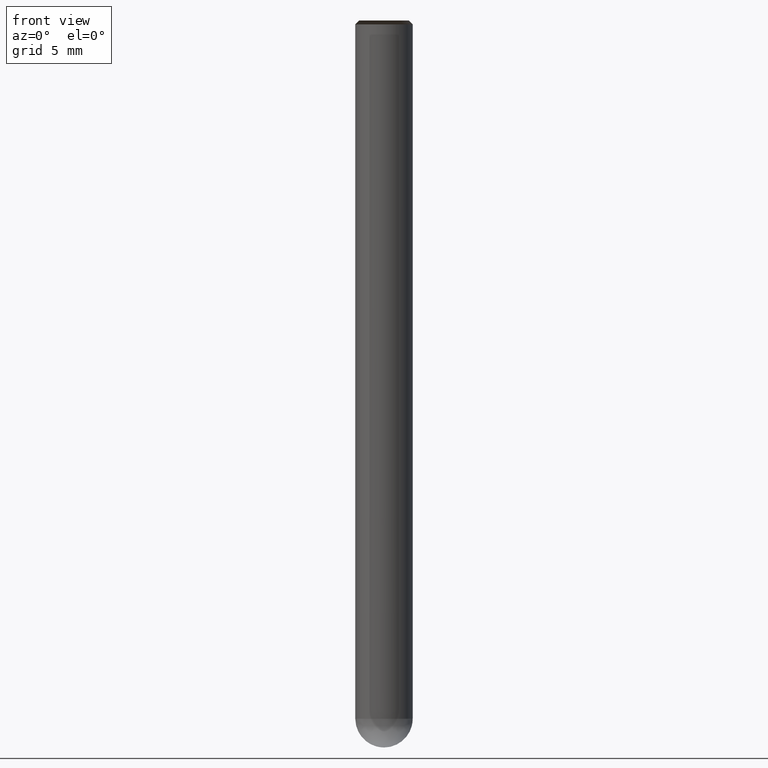
[diagram: clean part render]
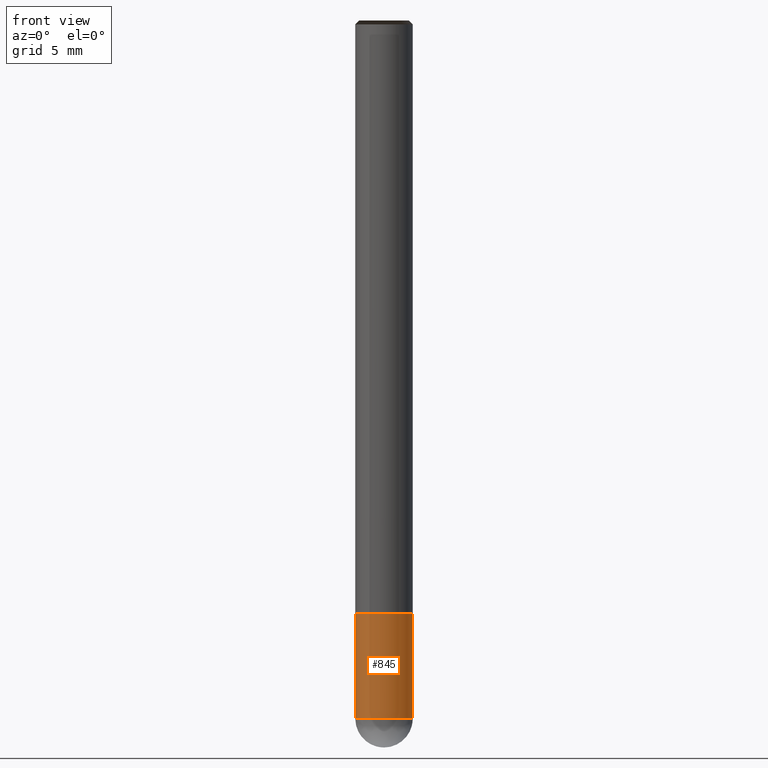
[diagram: same view with one face highlighted and labeled with its STEP entity id]
A machine part, front view. The second image highlights one B-rep face of the part: STEP entity #845.
In plain terms, the highlighted face is a freeform B-spline surface patch.
Its self-contained STEP definition (entity closure, byte-faithful):
#706=CARTESIAN_POINT('',(1.5,0.0,-10.5));
#710=CARTESIAN_POINT('',(-1.5,0.0,-10.5));
#711=CARTESIAN_POINT('',(1.5,0.0,-5.0));
#715=CARTESIAN_POINT('',(-1.5,0.0,-5.0));
#720=CARTESIAN_POINT('',(-1.5,-1.5,-10.5));
#721=CARTESIAN_POINT('',(0.0,-1.5,-10.5));
#722=CARTESIAN_POINT('',(1.5,-1.5,-10.5));
#723=CARTESIAN_POINT('',(-1.5,-1.5,-5.0));
#724=CARTESIAN_POINT('',(0.0,-1.5,-5.0));
#725=CARTESIAN_POINT('',(1.5,-1.5,-5.0));
#826=(
BOUNDED_SURFACE()
B_SPLINE_SURFACE(1,2,(
(#710,#720,#721,#722,#706),
(#715,#723,#724,#725,#711)
), .UNSPECIFIED.,.F.,.F.,.F.)
B_SPLINE_SURFACE_WITH_KNOTS((2,2),(3,2,3),(
0.0,1.0),(
0.0,0.5,1.0), .UNSPECIFIED.)
GEOMETRIC_REPRESENTATION_ITEM()
RATIONAL_B_SPLINE_SURFACE(((1.0,0.707106781187,1.0,0.707106781187,1.0),
(1.0,0.707106781187,1.0,0.707106781187,1.0)
))
REPRESENTATION_ITEM('')
SURFACE()
);
#827=(
BOUNDED_CURVE()
B_SPLINE_CURVE(2,(#706,#722,#721,#720,#710),.UNSPECIFIED.,.F.,.F.)
B_SPLINE_CURVE_WITH_KNOTS((3,2,3),
(0.0,0.5,1.0),.UNSPECIFIED.)
CURVE()
GEOMETRIC_REPRESENTATION_ITEM()
RATIONAL_B_SPLINE_CURVE((1.0,0.707106781187,1.0,0.707106781187,1.0))
REPRESENTATION_ITEM('')
);
#828=(
BOUNDED_CURVE()
B_SPLINE_CURVE(1,(#710,#715),.UNSPECIFIED.,.F.,.F.)
B_SPLINE_CURVE_WITH_KNOTS((2,2),
(0.0,1.0),.UNSPECIFIED.)
CURVE()
GEOMETRIC_REPRESENTATION_ITEM()
RATIONAL_B_SPLINE_CURVE((1.0,1.0))
REPRESENTATION_ITEM('')
);
#829=(
BOUNDED_CURVE()
B_SPLINE_CURVE(2,(#715,#723,#724,#725,#711),.UNSPECIFIED.,.F.,.F.)
B_SPLINE_CURVE_WITH_KNOTS((3,2,3),
(0.0,0.5,1.0),.UNSPECIFIED.)
CURVE()
GEOMETRIC_REPRESENTATION_ITEM()
RATIONAL_B_SPLINE_CURVE((1.0,0.707106781187,1.0,0.707106781187,1.0))
REPRESENTATION_ITEM('')
);
#830=(
BOUNDED_CURVE()
B_SPLINE_CURVE(1,(#711,#706),.UNSPECIFIED.,.F.,.F.)
B_SPLINE_CURVE_WITH_KNOTS((2,2),
(0.0,1.0),.UNSPECIFIED.)
CURVE()
GEOMETRIC_REPRESENTATION_ITEM()
RATIONAL_B_SPLINE_CURVE((1.0,1.0))
REPRESENTATION_ITEM('')
);
#831=VERTEX_POINT('',#706);
#832=VERTEX_POINT('',#710);
#833=VERTEX_POINT('',#711);
#834=VERTEX_POINT('',#715);
#835=EDGE_CURVE('',#831,#832,#827,.T.);
#836=EDGE_CURVE('',#832,#834,#828,.T.);
#837=EDGE_CURVE('',#834,#833,#829,.T.);
#838=EDGE_CURVE('',#833,#831,#830,.T.);
#839=ORIENTED_EDGE('',*,*,#835,.T.);
#840=ORIENTED_EDGE('',*,*,#836,.T.);
#841=ORIENTED_EDGE('',*,*,#837,.T.);
#842=ORIENTED_EDGE('',*,*,#838,.T.);
#843=EDGE_LOOP('',(#839,#840,#841,#842));
#844=FACE_OUTER_BOUND('',#843,.T.);
#845=ADVANCED_FACE('',(#844),#826,.T.);